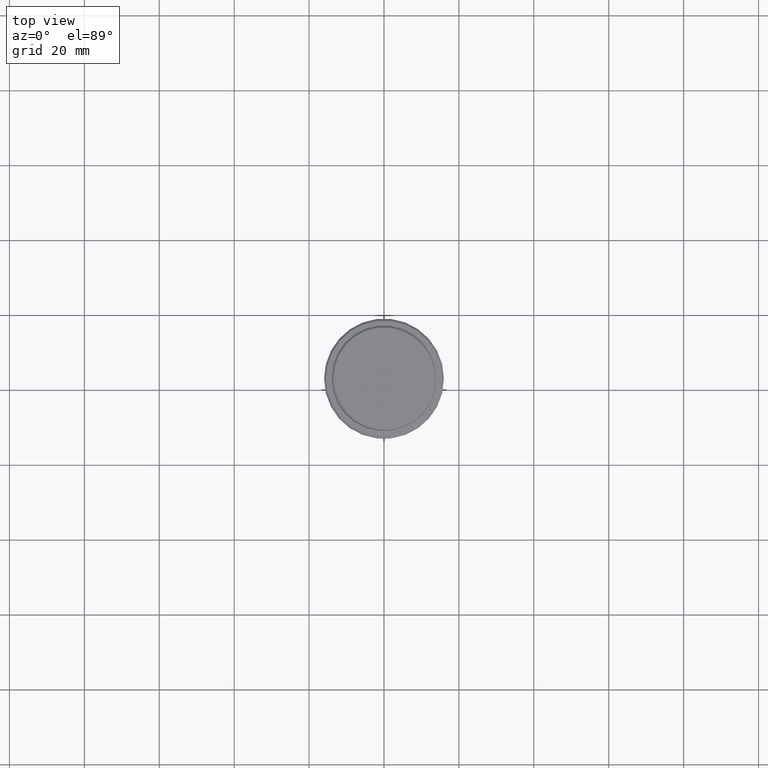
[diagram: clean part render]
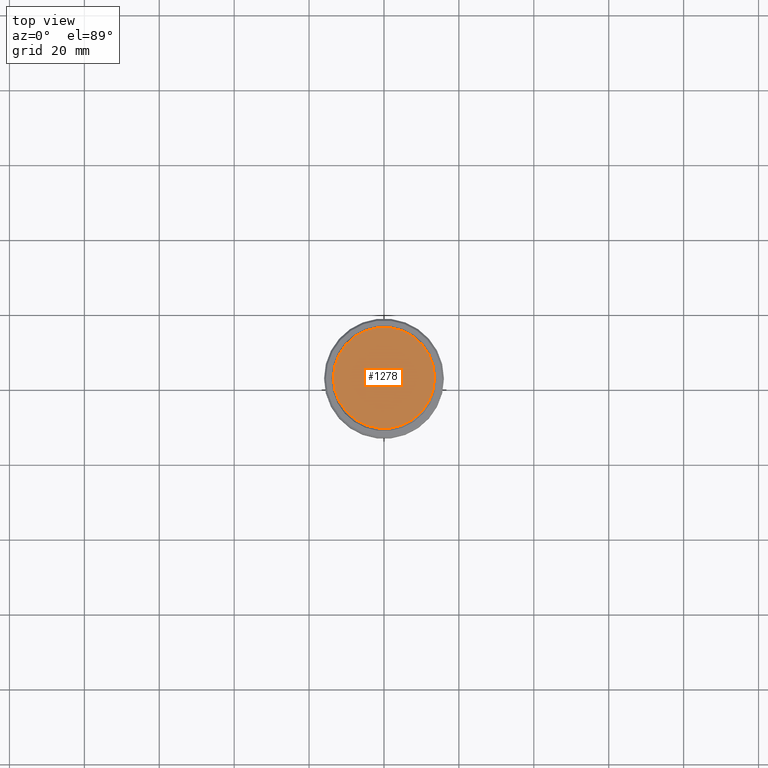
[diagram: same view with one face highlighted and labeled with its STEP entity id]
A machine part, top view. The second image highlights one B-rep face of the part: STEP entity #1278.
In plain terms, the highlighted planar face has unit normal (0, -0, 1).
Its self-contained STEP definition (entity closure, byte-faithful):
#1 = CARTESIAN_POINT ( 'NONE',  ( 0.000000000000000000, 0.000000000000000000, 0.000000000000000000 ) ) ;
#21 = CARTESIAN_POINT ( 'NONE',  ( 0.000000000000000000, 0.000000000000000000, 0.000000000000000000 ) ) ;
#67 = VERTEX_POINT ( 'NONE', #961 ) ;
#188 = ORIENTED_EDGE ( 'NONE', *, *, #788, .T. ) ;
#207 = DIRECTION ( 'NONE',  ( -0.000000000000000000, -0.000000000000000000, 1.000000000000000000 ) ) ;
#251 = DIRECTION ( 'NONE',  ( 1.000000000000000000, 0.000000000000000000, 0.000000000000000000 ) ) ;
#255 = EDGE_CURVE ( 'NONE', #780, #67, #1247, .T. ) ;
#284 = AXIS2_PLACEMENT_3D ( 'NONE', #425, #207, #927 ) ;
#394 = DIRECTION ( 'NONE',  ( 0.000000000000000000, -0.000000000000000000, 1.000000000000000000 ) ) ;
#425 = CARTESIAN_POINT ( 'NONE',  ( 0.000000000000000000, 0.000000000000000000, 0.000000000000000000 ) ) ;
#446 = DIRECTION ( 'NONE',  ( -0.000000000000000000, -0.000000000000000000, 1.000000000000000000 ) ) ;
#628 = EDGE_LOOP ( 'NONE', ( #970, #188 ) ) ;
#766 = FACE_OUTER_BOUND ( 'NONE', #628, .T. ) ;
#780 = VERTEX_POINT ( 'NONE', #1295 ) ;
#788 = EDGE_CURVE ( 'NONE', #67, #780, #1302, .T. ) ;
#874 = PLANE ( 'NONE',  #1117 ) ;
#927 = DIRECTION ( 'NONE',  ( 1.000000000000000000, 0.000000000000000000, 0.000000000000000000 ) ) ;
#961 = CARTESIAN_POINT ( 'NONE',  ( 13.49999999999998401, 1.683889348827608879E-15, 0.000000000000000000 ) ) ;
#970 = ORIENTED_EDGE ( 'NONE', *, *, #255, .T. ) ;
#1117 = AXIS2_PLACEMENT_3D ( 'NONE', #21, #394, #251 ) ;
#1247 = CIRCLE ( 'NONE', #284, 13.49999999999998401 ) ;
#1278 = ADVANCED_FACE ( 'NONE', ( #766 ), #874, .T. ) ;
#1295 = CARTESIAN_POINT ( 'NONE',  ( -13.49999999999998401, 0.000000000000000000, 0.000000000000000000 ) ) ;
#1302 = CIRCLE ( 'NONE', #1369, 13.49999999999998401 ) ;
#1303 = DIRECTION ( 'NONE',  ( 1.000000000000000000, 0.000000000000000000, 0.000000000000000000 ) ) ;
#1369 = AXIS2_PLACEMENT_3D ( 'NONE', #1, #446, #1303 ) ;